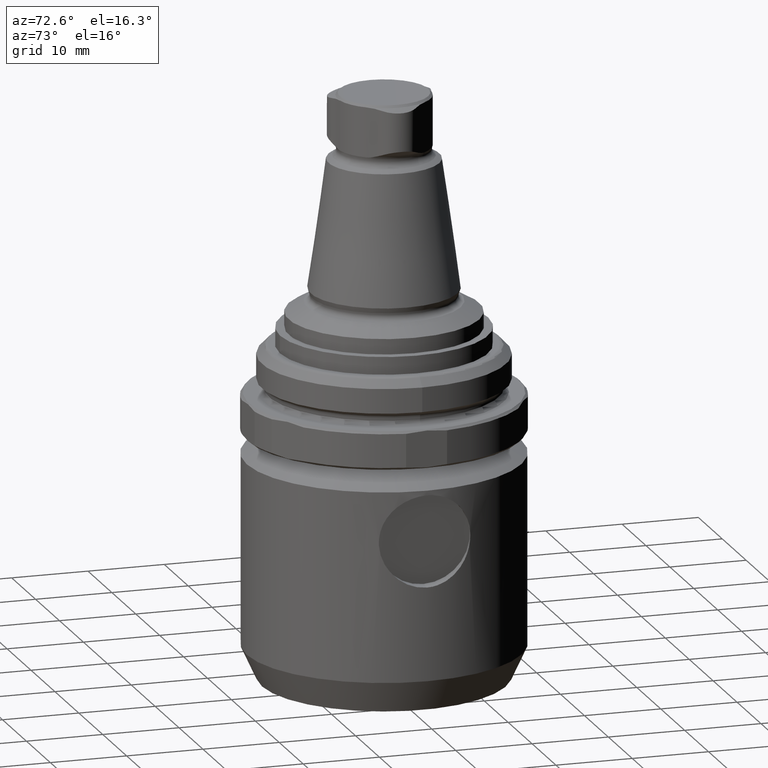
[diagram: clean part render]
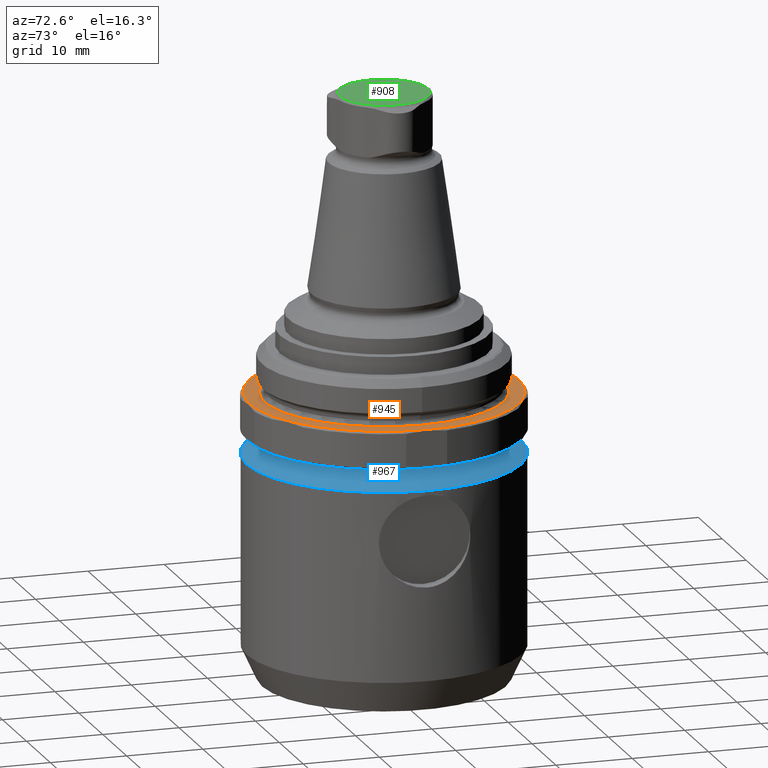
[diagram: same view with three faces highlighted in distinct colors, each labeled with its STEP entity id]
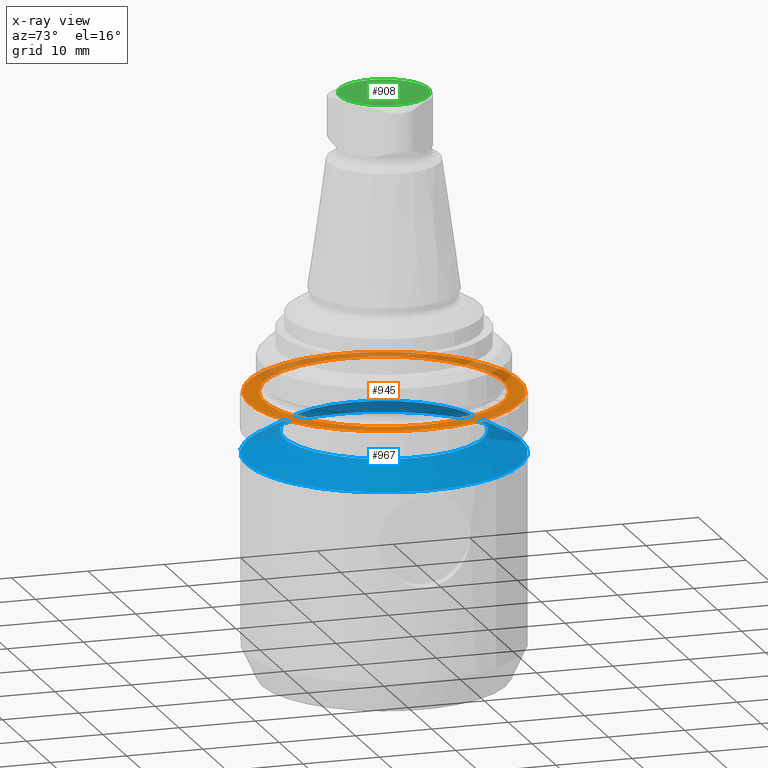
[diagram: x-ray of the same camera — body ghosted, the three highlighted faces saturated]
A machine part, auxiliary view with three faces highlighted in distinct colors.
The next image is the same camera in x-ray (body ghosted, the three faces saturated) — at least one of them is partly hidden behind the body in this view.
Their STEP definitions:

[orange] entity #945 — the highlighted planar face has unit normal (0, 0, -1).
#101=PLANE('',#1057);
#146=CIRCLE('',#1056,15.65);
#147=CIRCLE('',#1058,17.7);
#306=ORIENTED_EDGE('',*,*,#492,.T.);
#307=ORIENTED_EDGE('',*,*,#493,.F.);
#492=EDGE_CURVE('',#600,#600,#146,.T.);
#493=EDGE_CURVE('',#601,#601,#147,.T.);
#600=VERTEX_POINT('',#1666);
#601=VERTEX_POINT('',#1669);
#742=EDGE_LOOP('',(#306));
#743=EDGE_LOOP('',(#307));
#840=FACE_BOUND('',#742,.T.);
#841=FACE_BOUND('',#743,.T.);
#945=ADVANCED_FACE('',(#840,#841),#101,.F.);
#1056=AXIS2_PLACEMENT_3D('',#1665,#1262,#1263);
#1057=AXIS2_PLACEMENT_3D('',#1667,#1264,#1265);
#1058=AXIS2_PLACEMENT_3D('',#1668,#1266,#1267);
#1262=DIRECTION('',(1.1985897436163E-16,5.68031218956752E-33,-1.));
#1263=DIRECTION('',(1.,-2.71836589696428E-16,1.1985897436163E-16));
#1264=DIRECTION('',(1.1985897436163E-16,5.68031218956752E-33,-1.));
#1265=DIRECTION('',(1.,-2.71836589696428E-16,1.1985897436163E-16));
#1266=DIRECTION('',(1.1985897436163E-16,5.68031218956752E-33,-1.));
#1267=DIRECTION('',(1.,-2.71836589696428E-16,1.1985897436163E-16));
#1665=CARTESIAN_POINT('',(5.43304846694392E-15,-2.04089188767567E-31,-10.9948185144591));
#1666=CARTESIAN_POINT('',(15.65,-4.2542426287491E-15,-10.9948185144591));
#1667=CARTESIAN_POINT('',(15.65,-4.2542426287491E-15,-10.9948185144591));
#1668=CARTESIAN_POINT('',(5.43304846694392E-15,-2.04089188767567E-31,-10.9948185144591));
#1669=CARTESIAN_POINT('',(17.7,-4.81150763762678E-15,-10.9948185144591));

[blue] entity #967 — the highlighted conical surface has half-angle 60 deg.
#41=CONICAL_SURFACE('',#1100,18.,1.0471975511966);
#115=CIRCLE('',#988,18.);
#165=CIRCLE('',#1095,13.);
#412=ORIENTED_EDGE('',*,*,#543,.T.);
#413=ORIENTED_EDGE('',*,*,#424,.F.);
#424=EDGE_CURVE('',#550,#550,#115,.T.);
#543=EDGE_CURVE('',#635,#635,#165,.T.);
#550=VERTEX_POINT('',#1409);
#635=VERTEX_POINT('',#1820);
#770=EDGE_LOOP('',(#412));
#771=EDGE_LOOP('',(#413));
#868=FACE_BOUND('',#770,.T.);
#869=FACE_BOUND('',#771,.T.);
#967=ADVANCED_FACE('',(#868,#869),#41,.T.);
#988=AXIS2_PLACEMENT_3D('',#1408,#1114,#1115);
#1095=AXIS2_PLACEMENT_3D('',#1819,#1356,#1357);
#1100=AXIS2_PLACEMENT_3D('',#1827,#1366,#1367);
#1114=DIRECTION('',(1.22464605849178E-16,1.51929083932157E-64,-1.));
#1115=DIRECTION('',(6.16297582203915E-33,1.,7.54746404904039E-49));
#1356=DIRECTION('',(2.38112837580965E-16,-7.08117796935346E-33,-1.));
#1357=DIRECTION('',(-1.,6.12303176911188E-17,-2.38112837580965E-16));
#1366=DIRECTION('',(1.22464605849178E-16,1.51929083932157E-64,-1.));
#1367=DIRECTION('',(6.16297582203915E-33,1.,7.54746404904039E-49));
#1408=CARTESIAN_POINT('',(2.31232401076849E-15,2.86865961209269E-63,-18.8815698604072));
#1409=CARTESIAN_POINT('',(2.31232401076849E-15,18.,-18.8815698604072));
#1819=CARTESIAN_POINT('',(7.16237034329224E-15,-3.18616317599645E-31,-15.9948185144591));
#1820=CARTESIAN_POINT('',(-13.,7.95994129984545E-16,-15.9948185144591));
#1827=CARTESIAN_POINT('',(2.31232401076849E-15,2.86865961209269E-63,-18.8815698604072));

[green] entity #908 — the highlighted planar face has unit normal (-0, 0, 1).
#98=PLANE('',#990);
#117=CIRCLE('',#991,5.8);
#175=ORIENTED_EDGE('',*,*,#427,.F.);
#427=EDGE_CURVE('',#553,#553,#117,.T.);
#553=VERTEX_POINT('',#1434);
#687=EDGE_LOOP('',(#175));
#785=FACE_BOUND('',#687,.T.);
#908=ADVANCED_FACE('',(#785),#98,.T.);
#990=AXIS2_PLACEMENT_3D('',#1432,#1118,#1119);
#991=AXIS2_PLACEMENT_3D('',#1433,#1120,#1121);
#1118=DIRECTION('',(-2.38112837580965E-16,7.08117796935346E-33,1.));
#1119=DIRECTION('',(1.,-6.12303176911188E-17,2.38112837580965E-16));
#1120=DIRECTION('',(2.38112837580965E-16,-7.08117796935346E-33,-1.));
#1121=DIRECTION('',(-1.,6.12303176911188E-17,-2.38112837580965E-16));
#1432=CARTESIAN_POINT('',(-5.8,3.55135842608489E-16,28.0051814855409));
#1433=CARTESIAN_POINT('',(-3.31459451027023E-15,-7.04448694809252E-33,28.0051814855409));
#1434=CARTESIAN_POINT('',(-5.8,3.55135842608489E-16,28.0051814855409));